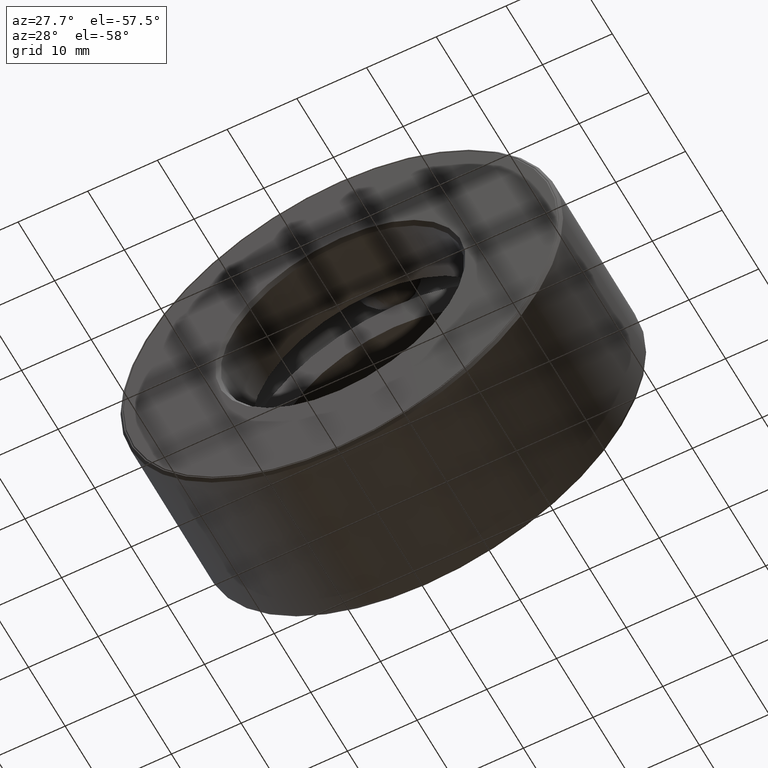
[diagram: clean part render]
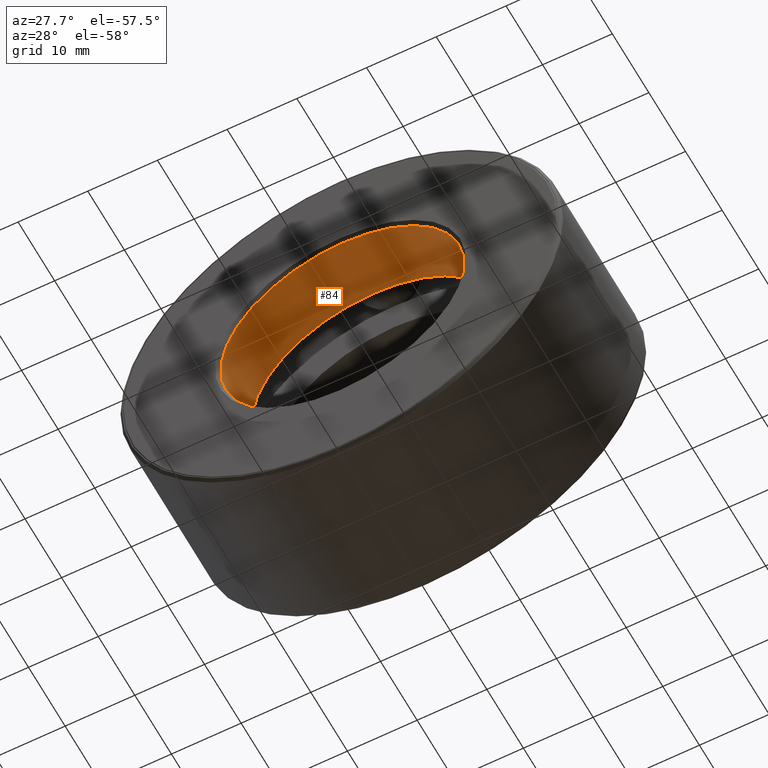
[diagram: same view with one face highlighted and labeled with its STEP entity id]
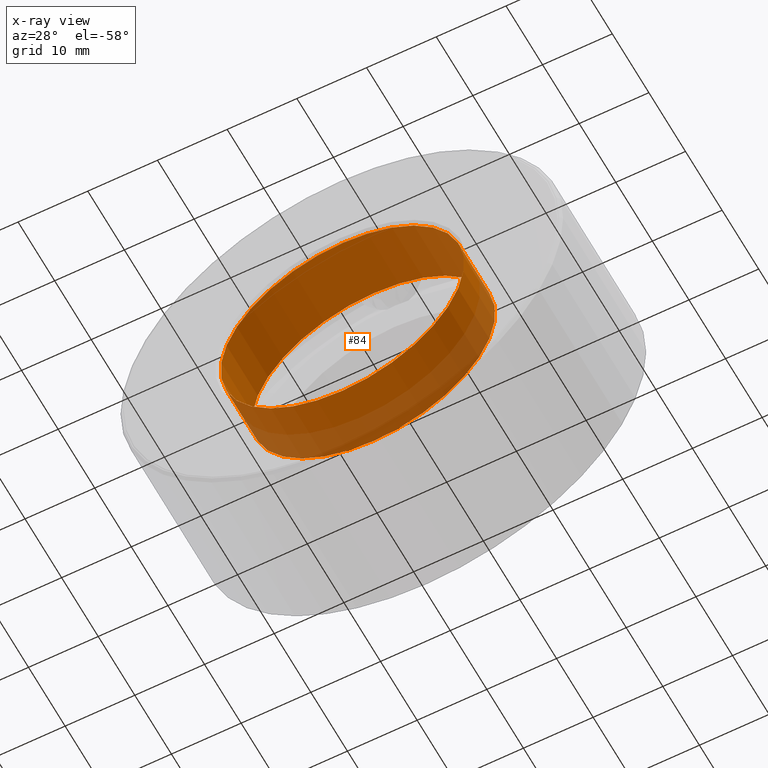
[diagram: x-ray of the same camera — body ghosted, the highlighted face saturated]
A machine part, auxiliary view. The second image highlights one B-rep face of the part: STEP entity #84.
The next image is the same camera in x-ray: the body ghosted, the highlighted face saturated — about 24% of this face is hidden behind the body in this view.
In plain terms, the highlighted cylindrical surface (bore or boss wall) has radius 17.4625 mm, axis along (-0, 1, -0).
Its self-contained STEP definition (entity closure, byte-faithful):
#84 = ADVANCED_FACE ( 'NONE', ( #343, #203 ), #165, .F. ) ;
#93 = CARTESIAN_POINT ( 'NONE',  ( 0.0000000000000000000, 0.0000000000000000000, 0.0000000000000000000 ) ) ;
#94 = DIRECTION ( 'NONE',  ( 0.0000000000000000000, 0.0000000000000000000, 1.000000000000000000 ) ) ;
#123 = DIRECTION ( 'NONE',  ( -0.0000000000000000000, 1.000000000000000000, -0.0000000000000000000 ) ) ;
#165 = CYLINDRICAL_SURFACE ( 'NONE', #480, 0.6875000000000000000 ) ;
#179 = CARTESIAN_POINT ( 'NONE',  ( 0.0000000000000000000, 0.3562500000000000700, 0.6875000000000001100 ) ) ;
#203 = FACE_OUTER_BOUND ( 'NONE', #345, .T. ) ;
#207 = DIRECTION ( 'NONE',  ( 0.0000000000000000000, 0.0000000000000000000, 1.000000000000000000 ) ) ;
#209 = AXIS2_PLACEMENT_3D ( 'NONE', #392, #438, #207 ) ;
#247 = VERTEX_POINT ( 'NONE', #410 ) ;
#301 = ORIENTED_EDGE ( 'NONE', *, *, #586, .T. ) ;
#343 = FACE_OUTER_BOUND ( 'NONE', #352, .T. ) ;
#345 = EDGE_LOOP ( 'NONE', ( #301 ) ) ;
#352 = EDGE_LOOP ( 'NONE', ( #563 ) ) ;
#369 = EDGE_CURVE ( 'NONE', #247, #247, #463, .T. ) ;
#376 = DIRECTION ( 'NONE',  ( -0.0000000000000000000, 1.000000000000000000, -0.0000000000000000000 ) ) ;
#392 = CARTESIAN_POINT ( 'NONE',  ( 0.0000000000000000000, 0.02000000000000060800, 0.0000000000000000000 ) ) ;
#410 = CARTESIAN_POINT ( 'NONE',  ( 0.0000000000000000000, 0.02000000000000060800, 0.6875000000000000000 ) ) ;
#438 = DIRECTION ( 'NONE',  ( -0.0000000000000000000, 1.000000000000000000, -0.0000000000000000000 ) ) ;
#463 = CIRCLE ( 'NONE', #209, 0.6875000000000000000 ) ;
#480 = AXIS2_PLACEMENT_3D ( 'NONE', #93, #376, #94 ) ;
#490 = CIRCLE ( 'NONE', #553, 0.6875000000000001100 ) ;
#491 = DIRECTION ( 'NONE',  ( 0.0000000000000000000, 0.0000000000000000000, 1.000000000000000000 ) ) ;
#497 = CARTESIAN_POINT ( 'NONE',  ( 0.0000000000000000000, 0.3562500000000000700, 0.0000000000000000000 ) ) ;
#553 = AXIS2_PLACEMENT_3D ( 'NONE', #497, #123, #491 ) ;
#563 = ORIENTED_EDGE ( 'NONE', *, *, #369, .F. ) ;
#586 = EDGE_CURVE ( 'NONE', #604, #604, #490, .T. ) ;
#604 = VERTEX_POINT ( 'NONE', #179 ) ;